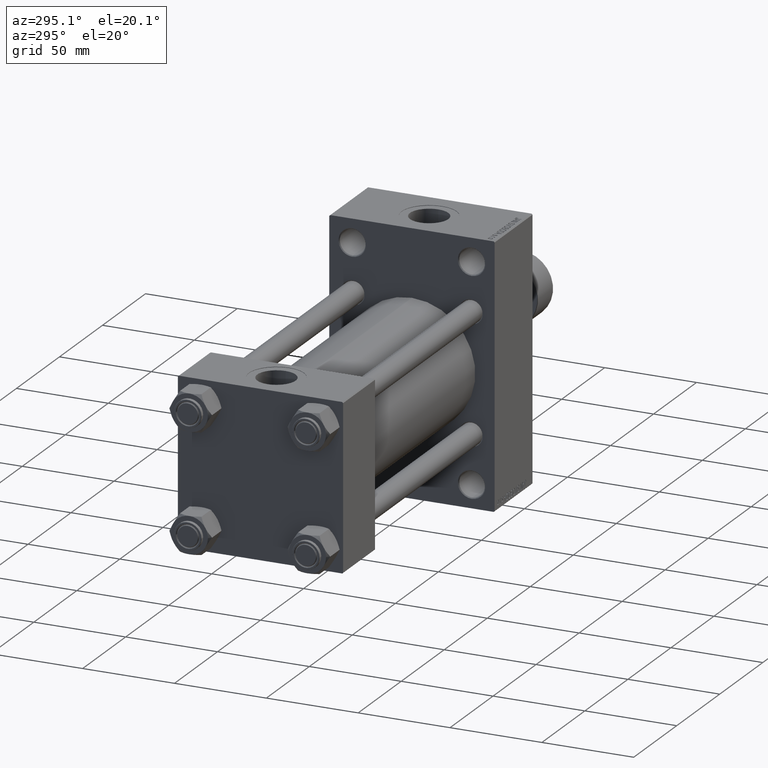
[diagram: clean part render]
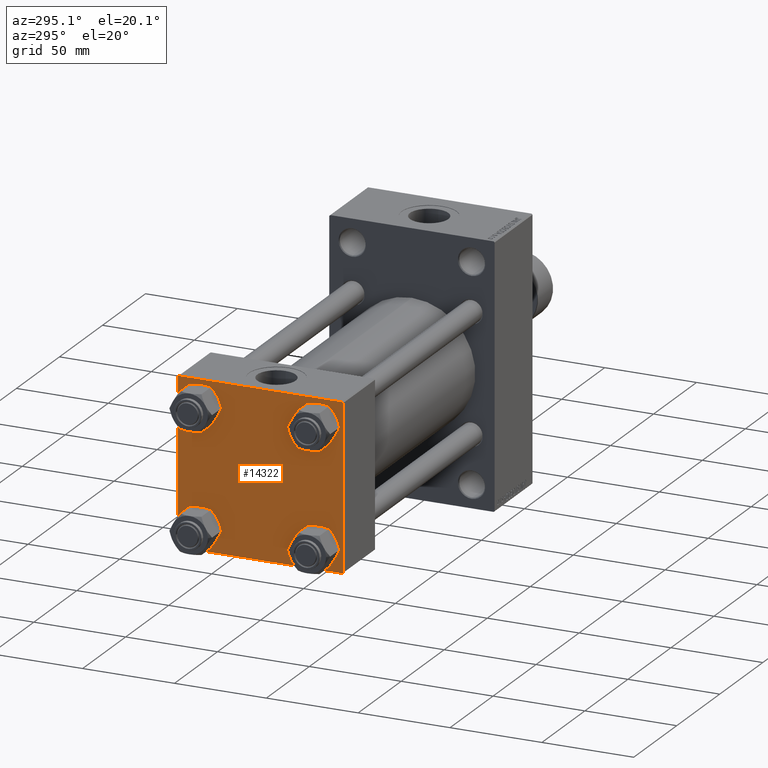
[diagram: same view with one face highlighted and labeled with its STEP entity id]
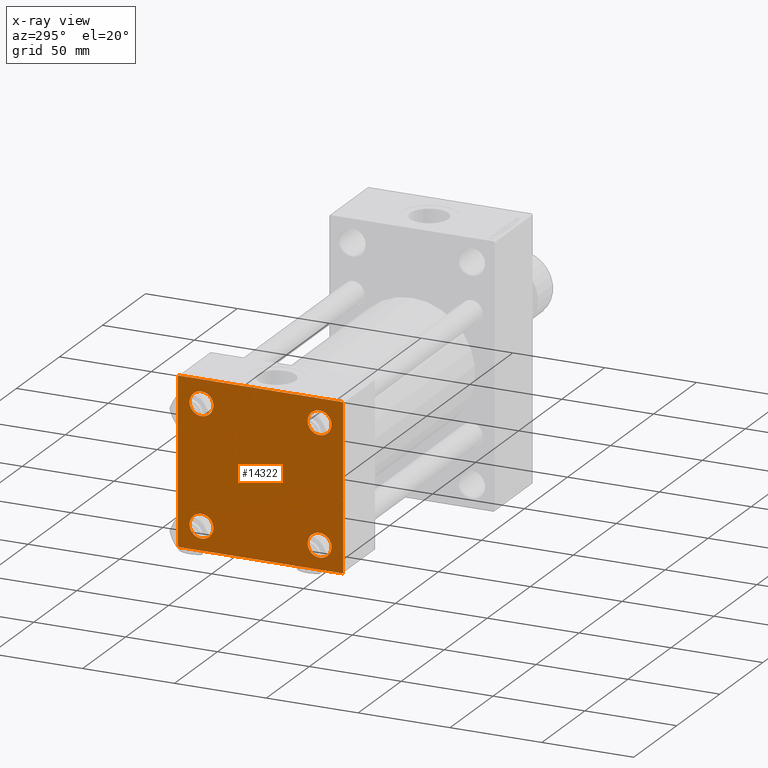
[diagram: x-ray of the same camera — body ghosted, the highlighted face saturated]
A machine part, auxiliary view. The second image highlights one B-rep face of the part: STEP entity #14322.
The next image is the same camera in x-ray: the body ghosted, the highlighted face saturated — about 0% of this face is hidden behind the body in this view.
In plain terms, the highlighted planar face has unit normal (-1, 0, 0).
Its self-contained STEP definition (entity closure, byte-faithful):
#527 = CIRCLE ( 'NONE', #36854, 6.499999999999977796 ) ;
#804 = AXIS2_PLACEMENT_3D ( 'NONE', #23697, #934, #4785 ) ;
#934 = DIRECTION ( 'NONE',  ( 1.000000000000000000, -0.000000000000000000, 0.000000000000000000 ) ) ;
#1000 = VECTOR ( 'NONE', #16242, 1000.000000000000114 ) ;
#1257 = CARTESIAN_POINT ( 'NONE',  ( 0.000000000000000000, 0.000000000000000000, 0.000000000000000000 ) ) ;
#1461 = CARTESIAN_POINT ( 'NONE',  ( -0.000000000000000000, -44.75000000000029843, 44.74999999999967315 ) ) ;
#1484 = DIRECTION ( 'NONE',  ( 1.000000000000000000, -0.000000000000000000, 0.000000000000000000 ) ) ;
#1640 = EDGE_LOOP ( 'NONE', ( #34401, #15231 ) ) ;
#1964 = CARTESIAN_POINT ( 'NONE',  ( 0.000000000000000000, -44.49999999999995737, -45.00000000000000000 ) ) ;
#1965 = CARTESIAN_POINT ( 'NONE',  ( 0.000000000000000000, 32.14999999999999147, 38.64999999999999147 ) ) ;
#2104 = EDGE_CURVE ( 'NONE', #35051, #46285, #2575, .T. ) ;
#2177 = VERTEX_POINT ( 'NONE', #9450 ) ;
#2575 = CIRCLE ( 'NONE', #33510, 6.500000000000019540 ) ;
#2819 = ORIENTED_EDGE ( 'NONE', *, *, #24286, .T. ) ;
#2838 = ORIENTED_EDGE ( 'NONE', *, *, #44940, .F. ) ;
#2861 = DIRECTION ( 'NONE',  ( 0.000000000000000000, 0.000000000000000000, 1.000000000000000000 ) ) ;
#2992 = DIRECTION ( 'NONE',  ( 1.000000000000000000, -0.000000000000000000, 0.000000000000000000 ) ) ;
#3471 = CIRCLE ( 'NONE', #22823, 6.499999999999977796 ) ;
#3554 = CARTESIAN_POINT ( 'NONE',  ( 0.000000000000000000, 44.99999999999998579, 45.00000000000001421 ) ) ;
#3749 = AXIS2_PLACEMENT_3D ( 'NONE', #17832, #10800, #25559 ) ;
#3776 = LINE ( 'NONE', #7181, #11688 ) ;
#3829 = VERTEX_POINT ( 'NONE', #1965 ) ;
#3912 = FACE_BOUND ( 'NONE', #1640, .T. ) ;
#4785 = DIRECTION ( 'NONE',  ( 0.000000000000000000, 0.000000000000000000, 1.000000000000000000 ) ) ;
#4984 = ORIENTED_EDGE ( 'NONE', *, *, #13594, .T. ) ;
#5425 = LINE ( 'NONE', #17527, #18726 ) ;
#6387 = ORIENTED_EDGE ( 'NONE', *, *, #35796, .T. ) ;
#6708 = EDGE_LOOP ( 'NONE', ( #4984, #29956, #6903, #2819, #2838, #27680, #27614, #29862 ) ) ;
#6745 = CARTESIAN_POINT ( 'NONE',  ( 0.000000000000000000, 44.99999999999998579, 44.50000000000001421 ) ) ;
#6765 = EDGE_CURVE ( 'NONE', #28224, #3829, #45262, .T. ) ;
#6903 = ORIENTED_EDGE ( 'NONE', *, *, #39012, .T. ) ;
#7181 = CARTESIAN_POINT ( 'NONE',  ( 0.000000000000000000, 44.99999999999998579, 45.00000000000001421 ) ) ;
#7463 = EDGE_CURVE ( 'NONE', #2177, #21912, #3471, .T. ) ;
#8049 = LINE ( 'NONE', #26949, #8188 ) ;
#8188 = VECTOR ( 'NONE', #27183, 1000.000000000000000 ) ;
#8366 = CARTESIAN_POINT ( 'NONE',  ( 0.000000000000000000, -44.74999999999998579, -44.74999999999998579 ) ) ;
#8718 = LINE ( 'NONE', #1461, #1000 ) ;
#8861 = DIRECTION ( 'NONE',  ( 0.000000000000000000, 0.000000000000000000, 1.000000000000000000 ) ) ;
#9450 = CARTESIAN_POINT ( 'NONE',  ( 0.000000000000000000, -32.14999999999997726, -38.64999999999999147 ) ) ;
#10446 = VECTOR ( 'NONE', #30048, 1000.000000000000114 ) ;
#10800 = DIRECTION ( 'NONE',  ( 1.000000000000000000, -0.000000000000000000, 0.000000000000000000 ) ) ;
#11516 = CIRCLE ( 'NONE', #30075, 6.499999999999977796 ) ;
#11528 = DIRECTION ( 'NONE',  ( 0.000000000000000000, -0.7071067811865474617, 0.7071067811865474617 ) ) ;
#11663 = VERTEX_POINT ( 'NONE', #39768 ) ;
#11688 = VECTOR ( 'NONE', #47631, 1000.000000000000000 ) ;
#11878 = DIRECTION ( 'NONE',  ( 1.000000000000000000, -0.000000000000000000, 0.000000000000000000 ) ) ;
#11919 = DIRECTION ( 'NONE',  ( -0.000000000000000000, 0.000000000000000000, 1.000000000000000000 ) ) ;
#13594 = EDGE_CURVE ( 'NONE', #15945, #16590, #21502, .T. ) ;
#14093 = DIRECTION ( 'NONE',  ( 1.000000000000000000, -0.000000000000000000, 0.000000000000000000 ) ) ;
#14322 = ADVANCED_FACE ( 'NONE', ( #18945, #3912, #15076, #26204, #44864 ), #33705, .T. ) ;
#14799 = DIRECTION ( 'NONE',  ( 0.000000000000000000, 0.000000000000000000, 1.000000000000000000 ) ) ;
#15076 = FACE_BOUND ( 'NONE', #35348, .T. ) ;
#15231 = ORIENTED_EDGE ( 'NONE', *, *, #7463, .T. ) ;
#15945 = VERTEX_POINT ( 'NONE', #6745 ) ;
#16129 = LINE ( 'NONE', #8366, #16778 ) ;
#16242 = DIRECTION ( 'NONE',  ( -0.000000000000000000, 0.7071067811865425767, 0.7071067811865524577 ) ) ;
#16590 = VERTEX_POINT ( 'NONE', #34978 ) ;
#16593 = CARTESIAN_POINT ( 'NONE',  ( 0.000000000000000000, -44.49999999999995737, 45.00000000000000000 ) ) ;
#16713 = CARTESIAN_POINT ( 'NONE',  ( 0.000000000000000000, -32.14999999999997726, 25.64999999999999147 ) ) ;
#16778 = VECTOR ( 'NONE', #11528, 1000.000000000000114 ) ;
#17527 = CARTESIAN_POINT ( 'NONE',  ( 0.000000000000000000, 44.74999999999999289, 44.74999999999999289 ) ) ;
#17610 = VERTEX_POINT ( 'NONE', #28203 ) ;
#17832 = CARTESIAN_POINT ( 'NONE',  ( 0.000000000000000000, 32.14999999999999147, -32.15000000000000568 ) ) ;
#18650 = CARTESIAN_POINT ( 'NONE',  ( 0.000000000000000000, 32.14999999999999147, 25.65000000000002700 ) ) ;
#18726 = VECTOR ( 'NONE', #24793, 1000.000000000000114 ) ;
#18945 = FACE_BOUND ( 'NONE', #35716, .T. ) ;
#20236 = DIRECTION ( 'NONE',  ( 1.000000000000000000, -0.000000000000000000, 0.000000000000000000 ) ) ;
#21502 = LINE ( 'NONE', #3554, #47671 ) ;
#21912 = VERTEX_POINT ( 'NONE', #22036 ) ;
#22036 = CARTESIAN_POINT ( 'NONE',  ( 0.000000000000000000, -32.14999999999997726, -25.65000000000003411 ) ) ;
#22823 = AXIS2_PLACEMENT_3D ( 'NONE', #41181, #11878, #14799 ) ;
#23697 = CARTESIAN_POINT ( 'NONE',  ( 0.000000000000000000, -32.14999999999997726, 32.15000000000001279 ) ) ;
#23764 = ORIENTED_EDGE ( 'NONE', *, *, #6765, .T. ) ;
#24286 = EDGE_CURVE ( 'NONE', #28077, #17610, #16129, .T. ) ;
#24523 = CARTESIAN_POINT ( 'NONE',  ( 0.000000000000000000, -32.14999999999997726, -32.15000000000001279 ) ) ;
#24720 = EDGE_CURVE ( 'NONE', #3829, #28224, #527, .T. ) ;
#24746 = ORIENTED_EDGE ( 'NONE', *, *, #24720, .T. ) ;
#24793 = DIRECTION ( 'NONE',  ( 0.000000000000000000, 0.7071067811865474617, -0.7071067811865474617 ) ) ;
#25559 = DIRECTION ( 'NONE',  ( 0.000000000000000000, 0.000000000000000000, 1.000000000000000000 ) ) ;
#25955 = DIRECTION ( 'NONE',  ( 0.000000000000000000, -1.000000000000000000, -1.541976423090495633E-16 ) ) ;
#26198 = CIRCLE ( 'NONE', #3749, 6.499999999999977796 ) ;
#26204 = FACE_BOUND ( 'NONE', #36796, .T. ) ;
#26695 = AXIS2_PLACEMENT_3D ( 'NONE', #28783, #31703, #2861 ) ;
#26949 = CARTESIAN_POINT ( 'NONE',  ( 0.000000000000000000, -45.00000000000000711, 45.00000000000000000 ) ) ;
#27183 = DIRECTION ( 'NONE',  ( 0.000000000000000000, 7.709882115452476934E-17, -1.000000000000000000 ) ) ;
#27480 = ORIENTED_EDGE ( 'NONE', *, *, #32957, .T. ) ;
#27614 = ORIENTED_EDGE ( 'NONE', *, *, #38329, .F. ) ;
#27634 = CARTESIAN_POINT ( 'NONE',  ( 0.000000000000000000, -32.14999999999997726, 32.15000000000001279 ) ) ;
#27680 = ORIENTED_EDGE ( 'NONE', *, *, #42430, .T. ) ;
#28077 = VERTEX_POINT ( 'NONE', #1964 ) ;
#28203 = CARTESIAN_POINT ( 'NONE',  ( 0.000000000000000000, -45.00000000000000000, -44.49999999999995737 ) ) ;
#28224 = VERTEX_POINT ( 'NONE', #18650 ) ;
#28589 = AXIS2_PLACEMENT_3D ( 'NONE', #24523, #14093, #39527 ) ;
#28783 = CARTESIAN_POINT ( 'NONE',  ( 0.000000000000000000, 32.14999999999999147, 32.15000000000000568 ) ) ;
#29344 = ORIENTED_EDGE ( 'NONE', *, *, #2104, .T. ) ;
#29693 = EDGE_CURVE ( 'NONE', #39368, #30783, #26198, .T. ) ;
#29862 = ORIENTED_EDGE ( 'NONE', *, *, #40504, .T. ) ;
#29956 = ORIENTED_EDGE ( 'NONE', *, *, #46257, .T. ) ;
#30048 = DIRECTION ( 'NONE',  ( -0.000000000000000000, -0.7071067811865474617, -0.7071067811865474617 ) ) ;
#30075 = AXIS2_PLACEMENT_3D ( 'NONE', #35933, #2992, #46841 ) ;
#30434 = CARTESIAN_POINT ( 'NONE',  ( 0.000000000000000000, -45.00000000000000711, 44.49999999999997158 ) ) ;
#30783 = VERTEX_POINT ( 'NONE', #39013 ) ;
#31703 = DIRECTION ( 'NONE',  ( 1.000000000000000000, -0.000000000000000000, 0.000000000000000000 ) ) ;
#32486 = CIRCLE ( 'NONE', #804, 6.500000000000019540 ) ;
#32957 = EDGE_CURVE ( 'NONE', #30783, #39368, #11516, .T. ) ;
#33510 = AXIS2_PLACEMENT_3D ( 'NONE', #27634, #1484, #42411 ) ;
#33611 = VERTEX_POINT ( 'NONE', #16593 ) ;
#33705 = PLANE ( 'NONE',  #44643 ) ;
#33854 = CARTESIAN_POINT ( 'NONE',  ( 0.000000000000000000, -32.14999999999997726, 38.65000000000003411 ) ) ;
#34135 = VECTOR ( 'NONE', #25955, 1000.000000000000000 ) ;
#34169 = LINE ( 'NONE', #41458, #34135 ) ;
#34401 = ORIENTED_EDGE ( 'NONE', *, *, #35370, .T. ) ;
#34978 = CARTESIAN_POINT ( 'NONE',  ( 0.000000000000000000, 44.99999999999998579, -44.49999999999995737 ) ) ;
#35051 = VERTEX_POINT ( 'NONE', #33854 ) ;
#35348 = EDGE_LOOP ( 'NONE', ( #27480, #38924 ) ) ;
#35370 = EDGE_CURVE ( 'NONE', #21912, #2177, #40973, .T. ) ;
#35716 = EDGE_LOOP ( 'NONE', ( #29344, #6387 ) ) ;
#35796 = EDGE_CURVE ( 'NONE', #46285, #35051, #32486, .T. ) ;
#35933 = CARTESIAN_POINT ( 'NONE',  ( 0.000000000000000000, 32.14999999999999147, -32.15000000000000568 ) ) ;
#36268 = DIRECTION ( 'NONE',  ( 0.000000000000000000, 0.000000000000000000, -1.000000000000000000 ) ) ;
#36796 = EDGE_LOOP ( 'NONE', ( #24746, #23764 ) ) ;
#36854 = AXIS2_PLACEMENT_3D ( 'NONE', #42291, #20236, #8861 ) ;
#37697 = CARTESIAN_POINT ( 'NONE',  ( 0.000000000000000000, 32.14999999999999147, -38.64999999999998437 ) ) ;
#38329 = EDGE_CURVE ( 'NONE', #42569, #33611, #3776, .T. ) ;
#38924 = ORIENTED_EDGE ( 'NONE', *, *, #29693, .T. ) ;
#39012 = EDGE_CURVE ( 'NONE', #11663, #28077, #34169, .T. ) ;
#39013 = CARTESIAN_POINT ( 'NONE',  ( 0.000000000000000000, 32.14999999999999147, -25.65000000000002700 ) ) ;
#39367 = VERTEX_POINT ( 'NONE', #30434 ) ;
#39368 = VERTEX_POINT ( 'NONE', #37697 ) ;
#39527 = DIRECTION ( 'NONE',  ( 0.000000000000000000, 0.000000000000000000, 1.000000000000000000 ) ) ;
#39768 = CARTESIAN_POINT ( 'NONE',  ( 0.000000000000000000, 44.49999999999998579, -44.99999999999998579 ) ) ;
#40504 = EDGE_CURVE ( 'NONE', #42569, #15945, #5425, .T. ) ;
#40953 = LINE ( 'NONE', #45062, #10446 ) ;
#40973 = CIRCLE ( 'NONE', #28589, 6.499999999999977796 ) ;
#41181 = CARTESIAN_POINT ( 'NONE',  ( 0.000000000000000000, -32.14999999999997726, -32.15000000000001279 ) ) ;
#41458 = CARTESIAN_POINT ( 'NONE',  ( 0.000000000000000000, 44.99999999999998579, -44.99999999999998579 ) ) ;
#42291 = CARTESIAN_POINT ( 'NONE',  ( 0.000000000000000000, 32.14999999999999147, 32.15000000000000568 ) ) ;
#42411 = DIRECTION ( 'NONE',  ( 0.000000000000000000, 0.000000000000000000, 1.000000000000000000 ) ) ;
#42430 = EDGE_CURVE ( 'NONE', #39367, #33611, #8718, .T. ) ;
#42569 = VERTEX_POINT ( 'NONE', #44763 ) ;
#44643 = AXIS2_PLACEMENT_3D ( 'NONE', #1257, #45098, #11919 ) ;
#44763 = CARTESIAN_POINT ( 'NONE',  ( 0.000000000000000000, 44.49999999999998579, 45.00000000000001421 ) ) ;
#44864 = FACE_OUTER_BOUND ( 'NONE', #6708, .T. ) ;
#44940 = EDGE_CURVE ( 'NONE', #39367, #17610, #8049, .T. ) ;
#45062 = CARTESIAN_POINT ( 'NONE',  ( 0.000000000000000000, 44.74999999999998579, -44.74999999999998579 ) ) ;
#45098 = DIRECTION ( 'NONE',  ( -1.000000000000000000, 0.000000000000000000, -0.000000000000000000 ) ) ;
#45262 = CIRCLE ( 'NONE', #26695, 6.499999999999977796 ) ;
#46257 = EDGE_CURVE ( 'NONE', #16590, #11663, #40953, .T. ) ;
#46285 = VERTEX_POINT ( 'NONE', #16713 ) ;
#46841 = DIRECTION ( 'NONE',  ( 0.000000000000000000, 0.000000000000000000, 1.000000000000000000 ) ) ;
#47631 = DIRECTION ( 'NONE',  ( 0.000000000000000000, -1.000000000000000000, -1.541976423090495387E-16 ) ) ;
#47671 = VECTOR ( 'NONE', #36268, 1000.000000000000000 ) ;